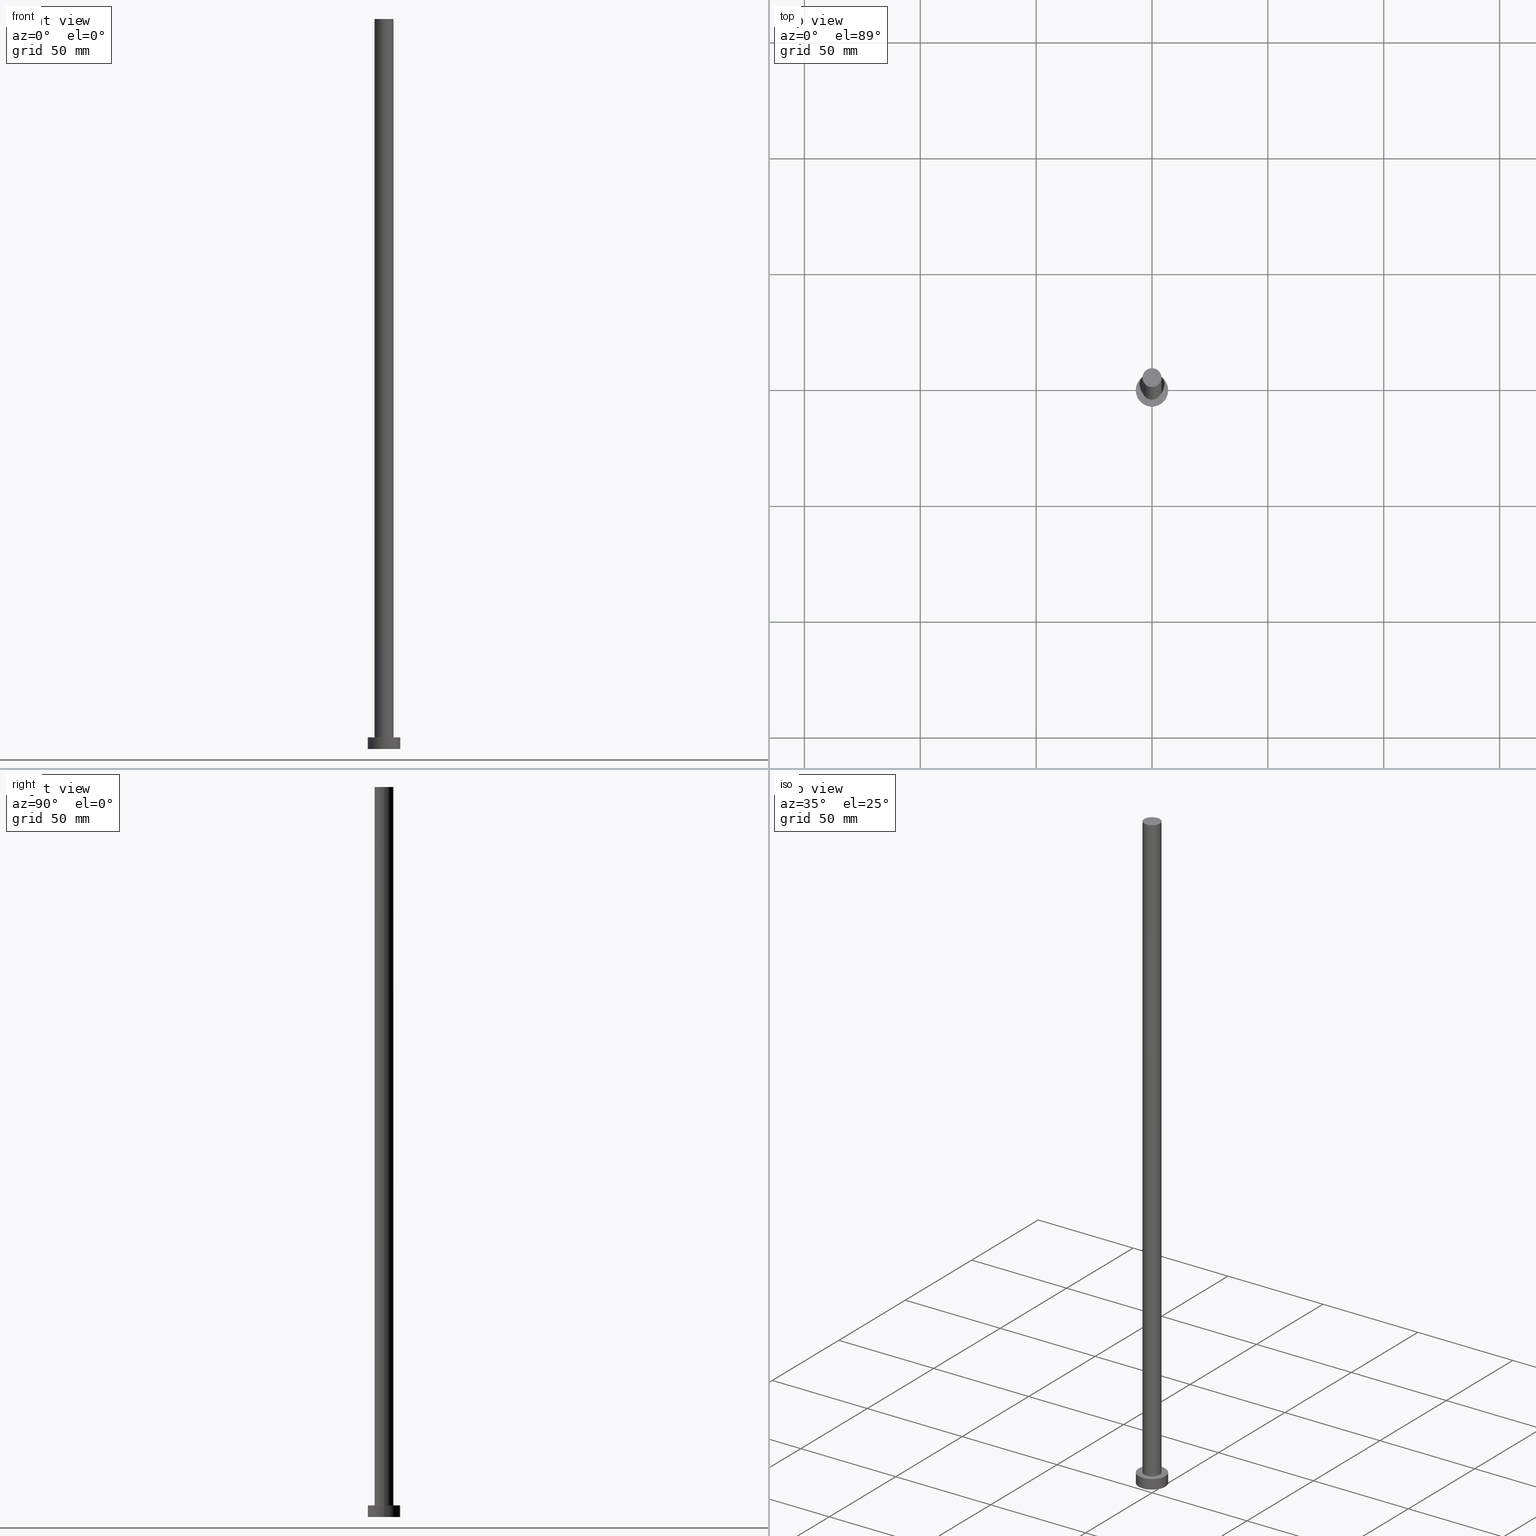
[diagram: canonical four-view strip — front | top / right | iso, engineering-drawing reading convention]
A machine part, canonical four-view strip (front | top / right | iso — engineering-drawing reading convention). The complete STEP part file that produces these views, byte-faithful:
ISO-10303-21;
HEADER;
FILE_DESCRIPTION (( 'STEP AP203' ),
    '1' );
FILE_NAME ('1405.STEP',
    '2023-02-13T14:20:53',
    ( '' ),
    ( '' ),
    'SwSTEP 2.0',
    'SolidWorks 2019',
    '' );
FILE_SCHEMA (( 'CONFIG_CONTROL_DESIGN' ));
ENDSEC;

DATA;
#1 = CYLINDRICAL_SURFACE ( 'NONE', #187, 4.099999999999999645 ) ;
#2 = AXIS2_PLACEMENT_3D ( 'NONE', #82, #6, #86 ) ;
#3 = DIRECTION ( 'NONE',  ( 0.000000000000000000, 0.000000000000000000, 1.000000000000000000 ) ) ;
#4 = MECHANICAL_CONTEXT ( 'NONE', #130, 'mechanical' ) ;
#5 = CARTESIAN_POINT ( 'NONE',  ( 7.000000000000000000, 8.572527594031473190E-16, 5.000000000000000000 ) ) ;
#6 = DIRECTION ( 'NONE',  ( 0.000000000000000000, 0.000000000000000000, 1.000000000000000000 ) ) ;
#7 = CARTESIAN_POINT ( 'NONE',  ( 0.000000000000000000, 0.000000000000000000, 5.000000000000000000 ) ) ;
#8 = DIRECTION ( 'NONE',  ( 0.000000000000000000, 0.000000000000000000, 1.000000000000000000 ) ) ;
#9 = EDGE_CURVE ( 'NONE', #207, #231, #162, .T. ) ;
#10 = DIRECTION ( 'NONE',  ( 1.000000000000000000, 0.000000000000000000, 0.000000000000000000 ) ) ;
#11 = PERSON_AND_ORGANIZATION ( #23, #109 ) ;
#12 = DIRECTION ( 'NONE',  ( 0.000000000000000000, 0.000000000000000000, 1.000000000000000000 ) ) ;
#13 = CIRCLE ( 'NONE', #204, 7.000000000000000000 ) ;
#14 = DATE_AND_TIME ( #58, #50 ) ;
#15 = EDGE_CURVE ( 'NONE', #175, #28, #119, .T. ) ;
#16 = DIRECTION ( 'NONE',  ( -0.000000000000000000, -0.000000000000000000, -1.000000000000000000 ) ) ;
#17 = CC_DESIGN_DATE_AND_TIME_ASSIGNMENT ( #37, #60, ( #221 ) ) ;
#18 = PRODUCT_DEFINITION_SHAPE ( 'NONE', 'NONE',  #221 ) ;
#19 = ORIENTED_EDGE ( 'NONE', *, *, #139, .T. ) ;
#20 = APPROVAL ( #144, 'NEUR�EN�' ) ;
#21 = CIRCLE ( 'NONE', #2, 7.000000000000000000 ) ;
#22 = PERSON_AND_ORGANIZATION ( #23, #109 ) ;
#23 = PERSON ( 'NEUR�EN�', 'NEUR�EN�', 'NEUR�EN�', ('NEUR�EN�'), ('NEUR�EN�'), ('NEUR�EN�') ) ;
#24 = APPROVAL_STATUS ( 'not_yet_approved' ) ;
#25 = EDGE_CURVE ( 'NONE', #189, #114, #234, .T. ) ;
#26 = DIRECTION ( 'NONE',  ( -0.000000000000000000, -0.000000000000000000, -1.000000000000000000 ) ) ;
#27 = AXIS2_PLACEMENT_3D ( 'NONE', #31, #236, #47 ) ;
#28 = VERTEX_POINT ( 'NONE', #132 ) ;
#29 = ADVANCED_FACE ( 'NONE', ( #99 ), #1, .T. ) ;
#30 = LOCAL_TIME ( 15, 20, 53.00000000000000000, #185 ) ;
#31 = CARTESIAN_POINT ( 'NONE',  ( 0.000000000000000000, 0.000000000000000000, 5.000000000000000000 ) ) ;
#32 = ORIENTED_EDGE ( 'NONE', *, *, #172, .T. ) ;
#33 = DIRECTION ( 'NONE',  ( -0.000000000000000000, -0.000000000000000000, -1.000000000000000000 ) ) ;
#34 = AXIS2_PLACEMENT_3D ( 'NONE', #148, #68, #81 ) ;
#35 = PERSON_AND_ORGANIZATION ( #23, #109 ) ;
#36 = ORIENTED_EDGE ( 'NONE', *, *, #9, .T. ) ;
#37 = DATE_AND_TIME ( #228, #63 ) ;
#38 = EDGE_CURVE ( 'NONE', #114, #189, #61, .T. ) ;
#39 = APPROVAL_DATE_TIME ( #14, #123 ) ;
#40 = ADVANCED_FACE ( 'NONE', ( #80 ), #100, .T. ) ;
#41 = AXIS2_PLACEMENT_3D ( 'NONE', #91, #226, #247 ) ;
#42 = EDGE_LOOP ( 'NONE', ( #108, #237, #156, #220 ) ) ;
#43 = VECTOR ( 'NONE', #16, 1000.000000000000000 ) ;
#44 = PLANE ( 'NONE',  #181 ) ;
#45 = CC_DESIGN_PERSON_AND_ORGANIZATION_ASSIGNMENT ( #11, #106, ( #93 ) ) ;
#46 = PLANE ( 'NONE',  #178 ) ;
#47 = DIRECTION ( 'NONE',  ( 1.000000000000000000, 0.000000000000000000, 0.000000000000000000 ) ) ;
#48 = FACE_OUTER_BOUND ( 'NONE', #137, .T. ) ;
#49 = DIRECTION ( 'NONE',  ( 0.000000000000000000, 0.000000000000000000, 1.000000000000000000 ) ) ;
#50 = LOCAL_TIME ( 15, 20, 53.00000000000000000, #105 ) ;
#51 = APPLICATION_PROTOCOL_DEFINITION ( 'international standard', 'config_control_design', 1994, #142 ) ;
#52 = AXIS2_PLACEMENT_3D ( 'NONE', #89, #248, #72 ) ;
#53 = MANIFOLD_SOLID_BREP ( 'P�idat vysunut�m3', #57 ) ;
#54 = LINE ( 'NONE', #131, #229 ) ;
#55 = APPROVAL_ROLE ( '' ) ;
#56 = EDGE_LOOP ( 'NONE', ( #128, #19 ) ) ;
#57 = CLOSED_SHELL ( 'NONE', ( #219, #177, #40, #190, #83, #29, #98 ) ) ;
#58 = CALENDAR_DATE ( 2023, 13, 2 ) ;
#59 = APPROVAL ( #24, 'NEUR�EN�' ) ;
#60 = DATE_TIME_ROLE ( 'creation_date' ) ;
#61 = CIRCLE ( 'NONE', #88, 4.099999999999999645 ) ;
#62 = AXIS2_PLACEMENT_3D ( 'NONE', #66, #147, #214 ) ;
#63 = LOCAL_TIME ( 15, 20, 53.00000000000000000, #121 ) ;
#64 = EDGE_CURVE ( 'NONE', #231, #239, #164, .T. ) ;
#65 = CYLINDRICAL_SURFACE ( 'NONE', #62, 4.099999999999999645 ) ;
#66 = CARTESIAN_POINT ( 'NONE',  ( 0.000000000000000000, 0.000000000000000000, 315.0000000000000000 ) ) ;
#67 = CARTESIAN_POINT ( 'NONE',  ( 0.000000000000000000, 0.000000000000000000, 5.000000000000000000 ) ) ;
#68 = DIRECTION ( 'NONE',  ( 0.000000000000000000, 0.000000000000000000, 1.000000000000000000 ) ) ;
#69 = DIRECTION ( 'NONE',  ( 0.000000000000000000, 0.000000000000000000, 1.000000000000000000 ) ) ;
#70 = APPROVAL_DATE_TIME ( #141, #20 ) ;
#71 = CC_DESIGN_DATE_AND_TIME_ASSIGNMENT ( #90, #125, ( #76 ) ) ;
#72 = DIRECTION ( 'NONE',  ( 1.000000000000000000, 0.000000000000000000, 0.000000000000000000 ) ) ;
#73 = DIRECTION ( 'NONE',  ( 1.000000000000000000, 0.000000000000000000, 0.000000000000000000 ) ) ;
#74 = UNCERTAINTY_MEASURE_WITH_UNIT (LENGTH_MEASURE( 1.000000000000000082E-05 ), #84, 'distance_accuracy_value', 'NONE');
#75 = COORDINATED_UNIVERSAL_TIME_OFFSET ( 1, 0, .AHEAD. ) ;
#76 = SECURITY_CLASSIFICATION ( '', '', #179 ) ;
#77 = EDGE_CURVE ( 'NONE', #239, #194, #21, .T. ) ;
#78 = SHAPE_DEFINITION_REPRESENTATION ( #18, #253 ) ;
#79 = EDGE_CURVE ( 'NONE', #207, #194, #54, .T. ) ;
#80 = FACE_OUTER_BOUND ( 'NONE', #212, .T. ) ;
#81 = DIRECTION ( 'NONE',  ( 1.000000000000000000, 0.000000000000000000, 0.000000000000000000 ) ) ;
#82 = CARTESIAN_POINT ( 'NONE',  ( 0.000000000000000000, 0.000000000000000000, 0.000000000000000000 ) ) ;
#83 = ADVANCED_FACE ( 'NONE', ( #113 ), #44, .F. ) ;
#84 =( LENGTH_UNIT ( ) NAMED_UNIT ( * ) SI_UNIT ( .MILLI., .METRE. ) );
#85 = CARTESIAN_POINT ( 'NONE',  ( -4.099999999999999645, 0.000000000000000000, 5.000000000000000000 ) ) ;
#86 = DIRECTION ( 'NONE',  ( 1.000000000000000000, 0.000000000000000000, 0.000000000000000000 ) ) ;
#87 = DIRECTION ( 'NONE',  ( 1.000000000000000000, 0.000000000000000000, -0.000000000000000000 ) ) ;
#88 = AXIS2_PLACEMENT_3D ( 'NONE', #192, #69, #186 ) ;
#89 = CARTESIAN_POINT ( 'NONE',  ( 0.000000000000000000, 0.000000000000000000, 315.0000000000000000 ) ) ;
#90 = DATE_AND_TIME ( #103, #217 ) ;
#91 = CARTESIAN_POINT ( 'NONE',  ( 0.000000000000000000, 0.000000000000000000, 315.0000000000000000 ) ) ;
#92 = PERSON_AND_ORGANIZATION_ROLE ( 'creator' ) ;
#93 = PRODUCT_DEFINITION_FORMATION_WITH_SPECIFIED_SOURCE ( 'LIBOVOLN�', '', #232, .NOT_KNOWN. ) ;
#94 = PERSON_AND_ORGANIZATION ( #23, #109 ) ;
#95 = CALENDAR_DATE ( 2023, 13, 2 ) ;
#96 = AXIS2_PLACEMENT_3D ( 'NONE', #116, #12, #10 ) ;
#97 = CARTESIAN_POINT ( 'NONE',  ( 0.000000000000000000, 0.000000000000000000, 315.0000000000000000 ) ) ;
#98 = ADVANCED_FACE ( 'NONE', ( #184 ), #153, .T. ) ;
#99 = FACE_OUTER_BOUND ( 'NONE', #242, .T. ) ;
#100 = CYLINDRICAL_SURFACE ( 'NONE', #120, 7.000000000000000000 ) ;
#101 = CC_DESIGN_PERSON_AND_ORGANIZATION_ASSIGNMENT ( #112, #240, ( #232 ) ) ;
#102 = CARTESIAN_POINT ( 'NONE',  ( 4.099999999999999645, 5.021051876504147385E-16, 5.000000000000000000 ) ) ;
#103 = CALENDAR_DATE ( 2023, 13, 2 ) ;
#104 = ORIENTED_EDGE ( 'NONE', *, *, #38, .F. ) ;
#105 = COORDINATED_UNIVERSAL_TIME_OFFSET ( 1, 0, .AHEAD. ) ;
#106 = PERSON_AND_ORGANIZATION_ROLE ( 'design_supplier' ) ;
#107 = PERSON_AND_ORGANIZATION ( #23, #109 ) ;
#108 = ORIENTED_EDGE ( 'NONE', *, *, #117, .F. ) ;
#109 = ORGANIZATION ( 'NEUR�EN�', 'NEUR�EN�', '' ) ;
#110 = APPROVAL_ROLE ( '' ) ;
#111 = DIRECTION ( 'NONE',  ( -1.000000000000000000, 0.000000000000000000, 0.000000000000000000 ) ) ;
#112 = PERSON_AND_ORGANIZATION ( #23, #109 ) ;
#113 = FACE_OUTER_BOUND ( 'NONE', #197, .T. ) ;
#114 = VERTEX_POINT ( 'NONE', #102 ) ;
#115 = LINE ( 'NONE', #196, #245 ) ;
#116 = CARTESIAN_POINT ( 'NONE',  ( 0.000000000000000000, 0.000000000000000000, 5.000000000000000000 ) ) ;
#117 = EDGE_CURVE ( 'NONE', #231, #207, #155, .T. ) ;
#118 = CARTESIAN_POINT ( 'NONE',  ( 4.099999999999999645, 5.021051876504147385E-16, 315.0000000000000000 ) ) ;
#119 = CIRCLE ( 'NONE', #202, 4.099999999999999645 ) ;
#120 = AXIS2_PLACEMENT_3D ( 'NONE', #168, #136, #149 ) ;
#121 = COORDINATED_UNIVERSAL_TIME_OFFSET ( 1, 0, .AHEAD. ) ;
#122 = APPROVAL_STATUS ( 'not_yet_approved' ) ;
#123 = APPROVAL ( #122, 'NEUR�EN�' ) ;
#124 = APPROVAL_PERSON_ORGANIZATION ( #193, #20, #110 ) ;
#125 = DATE_TIME_ROLE ( 'classification_date' ) ;
#126 = FACE_BOUND ( 'NONE', #216, .T. ) ;
#127 = ORIENTED_EDGE ( 'NONE', *, *, #135, .F. ) ;
#128 = ORIENTED_EDGE ( 'NONE', *, *, #15, .T. ) ;
#129 = CARTESIAN_POINT ( 'NONE',  ( 0.000000000000000000, 0.000000000000000000, 5.000000000000000000 ) ) ;
#130 = APPLICATION_CONTEXT ( 'configuration controlled 3d designs of mechanical parts and assemblies' ) ;
#131 = CARTESIAN_POINT ( 'NONE',  ( -7.000000000000000000, 0.000000000000000000, 5.000000000000000000 ) ) ;
#132 = CARTESIAN_POINT ( 'NONE',  ( 4.099999999999999645, 5.021051876504147385E-16, 315.0000000000000000 ) ) ;
#133 = CARTESIAN_POINT ( 'NONE',  ( 7.000000000000000000, 8.572527594031473190E-16, 5.000000000000000000 ) ) ;
#134 = DIRECTION ( 'NONE',  ( -0.000000000000000000, -0.000000000000000000, -1.000000000000000000 ) ) ;
#135 = EDGE_CURVE ( 'NONE', #194, #239, #13, .T. ) ;
#136 = DIRECTION ( 'NONE',  ( -0.000000000000000000, -0.000000000000000000, -1.000000000000000000 ) ) ;
#137 = EDGE_LOOP ( 'NONE', ( #36, #173 ) ) ;
#138 = CARTESIAN_POINT ( 'NONE',  ( 0.000000000000000000, 0.000000000000000000, 0.000000000000000000 ) ) ;
#139 = EDGE_CURVE ( 'NONE', #28, #175, #143, .T. ) ;
#140 = ORIENTED_EDGE ( 'NONE', *, *, #172, .F. ) ;
#141 = DATE_AND_TIME ( #180, #30 ) ;
#142 = APPLICATION_CONTEXT ( 'configuration controlled 3d designs of mechanical parts and assemblies' ) ;
#143 = CIRCLE ( 'NONE', #52, 4.099999999999999645 ) ;
#144 = APPROVAL_STATUS ( 'not_yet_approved' ) ;
#145 = DIRECTION ( 'NONE',  ( 1.000000000000000000, 0.000000000000000000, 0.000000000000000000 ) ) ;
#146 = ORIENTED_EDGE ( 'NONE', *, *, #135, .T. ) ;
#147 = DIRECTION ( 'NONE',  ( -0.000000000000000000, -0.000000000000000000, -1.000000000000000000 ) ) ;
#148 = CARTESIAN_POINT ( 'NONE',  ( 0.000000000000000000, 0.000000000000000000, 0.000000000000000000 ) ) ;
#149 = DIRECTION ( 'NONE',  ( -1.000000000000000000, 0.000000000000000000, 0.000000000000000000 ) ) ;
#150 = LOCAL_TIME ( 15, 20, 53.00000000000000000, #252 ) ;
#151 = CC_DESIGN_APPROVAL ( #20, ( #221 ) ) ;
#152 = ORIENTED_EDGE ( 'NONE', *, *, #174, .T. ) ;
#153 = PLANE ( 'NONE',  #41 ) ;
#154 = PERSON_AND_ORGANIZATION_ROLE ( 'classification_officer' ) ;
#155 = CIRCLE ( 'NONE', #96, 7.000000000000000000 ) ;
#156 = ORIENTED_EDGE ( 'NONE', *, *, #77, .T. ) ;
#157 = APPROVAL_PERSON_ORGANIZATION ( #107, #123, #55 ) ;
#158 = APPROVAL_DATE_TIME ( #230, #59 ) ;
#159 = APPROVAL_PERSON_ORGANIZATION ( #22, #59, #254 ) ;
#160 = CARTESIAN_POINT ( 'NONE',  ( -7.000000000000000000, 0.000000000000000000, 0.000000000000000000 ) ) ;
#161 = DIRECTION ( 'NONE',  ( -1.000000000000000000, 0.000000000000000000, 0.000000000000000000 ) ) ;
#162 = CIRCLE ( 'NONE', #27, 7.000000000000000000 ) ;
#163 = APPLICATION_PROTOCOL_DEFINITION ( 'international standard', 'config_control_design', 1994, #130 ) ;
#164 = LINE ( 'NONE', #5, #208 ) ;
#165 = ORIENTED_EDGE ( 'NONE', *, *, #25, .T. ) ;
#166 = CC_DESIGN_PERSON_AND_ORGANIZATION_ASSIGNMENT ( #244, #195, ( #221 ) ) ;
#167 = DIRECTION ( 'NONE',  ( -0.000000000000000000, -0.000000000000000000, -1.000000000000000000 ) ) ;
#168 = CARTESIAN_POINT ( 'NONE',  ( 0.000000000000000000, 0.000000000000000000, 5.000000000000000000 ) ) ;
#169 = CARTESIAN_POINT ( 'NONE',  ( 0.000000000000000000, 0.000000000000000000, 0.000000000000000000 ) ) ;
#170 = CC_DESIGN_SECURITY_CLASSIFICATION ( #76, ( #93 ) ) ;
#171 = CARTESIAN_POINT ( 'NONE',  ( -4.099999999999999645, 0.000000000000000000, 315.0000000000000000 ) ) ;
#172 = EDGE_CURVE ( 'NONE', #28, #114, #224, .T. ) ;
#173 = ORIENTED_EDGE ( 'NONE', *, *, #117, .T. ) ;
#174 = EDGE_CURVE ( 'NONE', #175, #189, #115, .T. ) ;
#175 = VERTEX_POINT ( 'NONE', #171 ) ;
#176 = CC_DESIGN_APPROVAL ( #123, ( #93 ) ) ;
#177 = ADVANCED_FACE ( 'NONE', ( #222 ), #198, .T. ) ;
#178 = AXIS2_PLACEMENT_3D ( 'NONE', #7, #235, #255 ) ;
#179 = SECURITY_CLASSIFICATION_LEVEL ( 'unclassified' ) ;
#180 = CALENDAR_DATE ( 2023, 13, 2 ) ;
#181 = AXIS2_PLACEMENT_3D ( 'NONE', #169, #8, #87 ) ;
#182 = CC_DESIGN_APPROVAL ( #59, ( #76 ) ) ;
#183 = CARTESIAN_POINT ( 'NONE',  ( 7.000000000000000000, 8.572527594031473190E-16, 0.000000000000000000 ) ) ;
#184 = FACE_OUTER_BOUND ( 'NONE', #56, .T. ) ;
#185 = COORDINATED_UNIVERSAL_TIME_OFFSET ( 1, 0, .AHEAD. ) ;
#186 = DIRECTION ( 'NONE',  ( 1.000000000000000000, 0.000000000000000000, 0.000000000000000000 ) ) ;
#187 = AXIS2_PLACEMENT_3D ( 'NONE', #215, #134, #111 ) ;
#188 = ORIENTED_EDGE ( 'NONE', *, *, #64, .F. ) ;
#189 = VERTEX_POINT ( 'NONE', #85 ) ;
#190 = ADVANCED_FACE ( 'NONE', ( #126, #48 ), #46, .T. ) ;
#191 =( NAMED_UNIT ( * ) SI_UNIT ( $, .STERADIAN. ) SOLID_ANGLE_UNIT ( ) );
#192 = CARTESIAN_POINT ( 'NONE',  ( 0.000000000000000000, 0.000000000000000000, 5.000000000000000000 ) ) ;
#193 = PERSON_AND_ORGANIZATION ( #23, #109 ) ;
#194 = VERTEX_POINT ( 'NONE', #160 ) ;
#195 = PERSON_AND_ORGANIZATION_ROLE ( 'creator' ) ;
#196 = CARTESIAN_POINT ( 'NONE',  ( -4.099999999999999645, 0.000000000000000000, 315.0000000000000000 ) ) ;
#197 = EDGE_LOOP ( 'NONE', ( #127, #211 ) ) ;
#198 = CYLINDRICAL_SURFACE ( 'NONE', #200, 7.000000000000000000 ) ;
#199 = PRODUCT_RELATED_PRODUCT_CATEGORY ( 'detail', '', ( #232 ) ) ;
#200 = AXIS2_PLACEMENT_3D ( 'NONE', #129, #167, #161 ) ;
#201 = ORIENTED_EDGE ( 'NONE', *, *, #25, .F. ) ;
#202 = AXIS2_PLACEMENT_3D ( 'NONE', #97, #49, #145 ) ;
#203 = ORIENTED_EDGE ( 'NONE', *, *, #38, .T. ) ;
#204 = AXIS2_PLACEMENT_3D ( 'NONE', #138, #223, #73 ) ;
#205 = ORIENTED_EDGE ( 'NONE', *, *, #15, .F. ) ;
#206 = ORIENTED_EDGE ( 'NONE', *, *, #79, .T. ) ;
#207 = VERTEX_POINT ( 'NONE', #210 ) ;
#208 = VECTOR ( 'NONE', #218, 1000.000000000000000 ) ;
#209 =( NAMED_UNIT ( * ) PLANE_ANGLE_UNIT ( ) SI_UNIT ( $, .RADIAN. ) );
#210 = CARTESIAN_POINT ( 'NONE',  ( -7.000000000000000000, 0.000000000000000000, 5.000000000000000000 ) ) ;
#211 = ORIENTED_EDGE ( 'NONE', *, *, #77, .F. ) ;
#212 = EDGE_LOOP ( 'NONE', ( #188, #249, #206, #146 ) ) ;
#213 =( GEOMETRIC_REPRESENTATION_CONTEXT ( 3 ) GLOBAL_UNCERTAINTY_ASSIGNED_CONTEXT ( ( #74 ) ) GLOBAL_UNIT_ASSIGNED_CONTEXT ( ( #84, #209, #191 ) ) REPRESENTATION_CONTEXT ( 'NONE', 'WORKASPACE' ) );
#214 = DIRECTION ( 'NONE',  ( -1.000000000000000000, 0.000000000000000000, 0.000000000000000000 ) ) ;
#215 = CARTESIAN_POINT ( 'NONE',  ( 0.000000000000000000, 0.000000000000000000, 315.0000000000000000 ) ) ;
#216 = EDGE_LOOP ( 'NONE', ( #201, #104 ) ) ;
#217 = LOCAL_TIME ( 15, 20, 53.00000000000000000, #75 ) ;
#218 = DIRECTION ( 'NONE',  ( -0.000000000000000000, -0.000000000000000000, -1.000000000000000000 ) ) ;
#219 = ADVANCED_FACE ( 'NONE', ( #238 ), #65, .T. ) ;
#220 = ORIENTED_EDGE ( 'NONE', *, *, #79, .F. ) ;
#221 = PRODUCT_DEFINITION ( 'NEZN�M�', '', #93, #227 ) ;
#222 = FACE_OUTER_BOUND ( 'NONE', #42, .T. ) ;
#223 = DIRECTION ( 'NONE',  ( 0.000000000000000000, 0.000000000000000000, 1.000000000000000000 ) ) ;
#224 = LINE ( 'NONE', #118, #43 ) ;
#225 = ORIENTED_EDGE ( 'NONE', *, *, #139, .F. ) ;
#226 = DIRECTION ( 'NONE',  ( 0.000000000000000000, 0.000000000000000000, 1.000000000000000000 ) ) ;
#227 = DESIGN_CONTEXT ( 'detailed design', #142, 'design' ) ;
#228 = CALENDAR_DATE ( 2023, 13, 2 ) ;
#229 = VECTOR ( 'NONE', #26, 1000.000000000000000 ) ;
#230 = DATE_AND_TIME ( #95, #150 ) ;
#231 = VERTEX_POINT ( 'NONE', #133 ) ;
#232 = PRODUCT ( '1405', '1405', '', ( #4 ) ) ;
#233 = CC_DESIGN_PERSON_AND_ORGANIZATION_ASSIGNMENT ( #35, #92, ( #93 ) ) ;
#234 = CIRCLE ( 'NONE', #246, 4.099999999999999645 ) ;
#235 = DIRECTION ( 'NONE',  ( 0.000000000000000000, 0.000000000000000000, 1.000000000000000000 ) ) ;
#236 = DIRECTION ( 'NONE',  ( 0.000000000000000000, 0.000000000000000000, 1.000000000000000000 ) ) ;
#237 = ORIENTED_EDGE ( 'NONE', *, *, #64, .T. ) ;
#238 = FACE_OUTER_BOUND ( 'NONE', #243, .T. ) ;
#239 = VERTEX_POINT ( 'NONE', #183 ) ;
#240 = PERSON_AND_ORGANIZATION_ROLE ( 'design_owner' ) ;
#241 = DIRECTION ( 'NONE',  ( 1.000000000000000000, 0.000000000000000000, 0.000000000000000000 ) ) ;
#242 = EDGE_LOOP ( 'NONE', ( #140, #205, #152, #165 ) ) ;
#243 = EDGE_LOOP ( 'NONE', ( #225, #32, #203, #251 ) ) ;
#244 = PERSON_AND_ORGANIZATION ( #23, #109 ) ;
#245 = VECTOR ( 'NONE', #33, 1000.000000000000000 ) ;
#246 = AXIS2_PLACEMENT_3D ( 'NONE', #67, #3, #241 ) ;
#247 = DIRECTION ( 'NONE',  ( 1.000000000000000000, 0.000000000000000000, -0.000000000000000000 ) ) ;
#248 = DIRECTION ( 'NONE',  ( 0.000000000000000000, 0.000000000000000000, 1.000000000000000000 ) ) ;
#249 = ORIENTED_EDGE ( 'NONE', *, *, #9, .F. ) ;
#250 = CC_DESIGN_PERSON_AND_ORGANIZATION_ASSIGNMENT ( #94, #154, ( #76 ) ) ;
#251 = ORIENTED_EDGE ( 'NONE', *, *, #174, .F. ) ;
#252 = COORDINATED_UNIVERSAL_TIME_OFFSET ( 1, 0, .AHEAD. ) ;
#253 = ADVANCED_BREP_SHAPE_REPRESENTATION ( '1405', ( #53, #34 ), #213 ) ;
#254 = APPROVAL_ROLE ( '' ) ;
#255 = DIRECTION ( 'NONE',  ( 1.000000000000000000, 0.000000000000000000, -0.000000000000000000 ) ) ;
ENDSEC;
END-ISO-10303-21;
